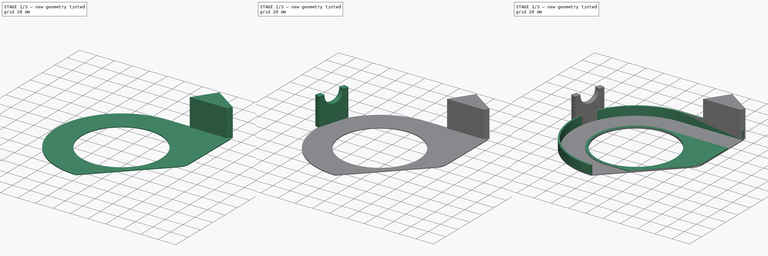
[diagram: build sequence overview — one tinted view per stage of 3, left to right]
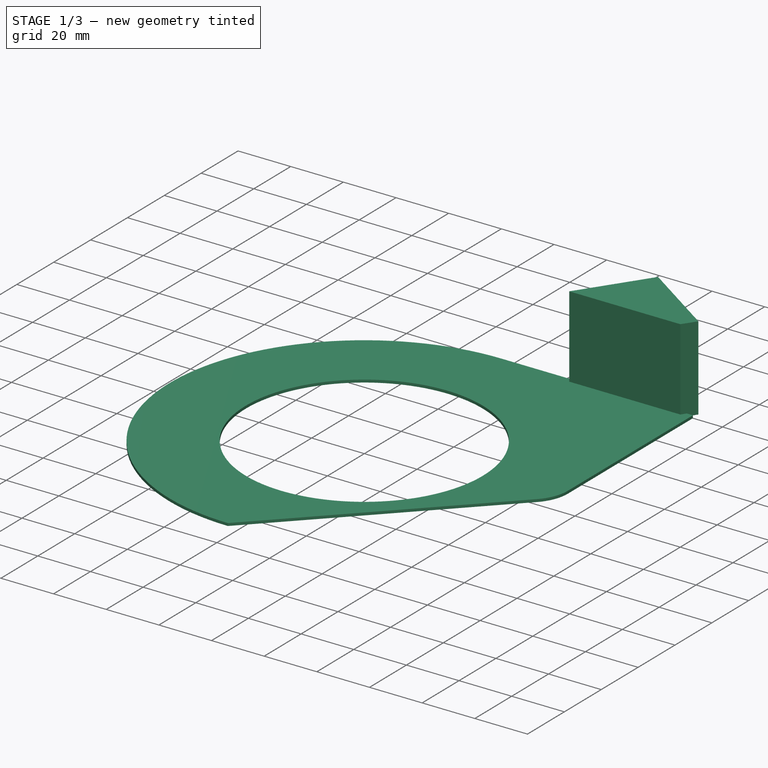
[diagram: stage 1 of 3 — iso view after this stage's code; geometry added in this stage tinted green]
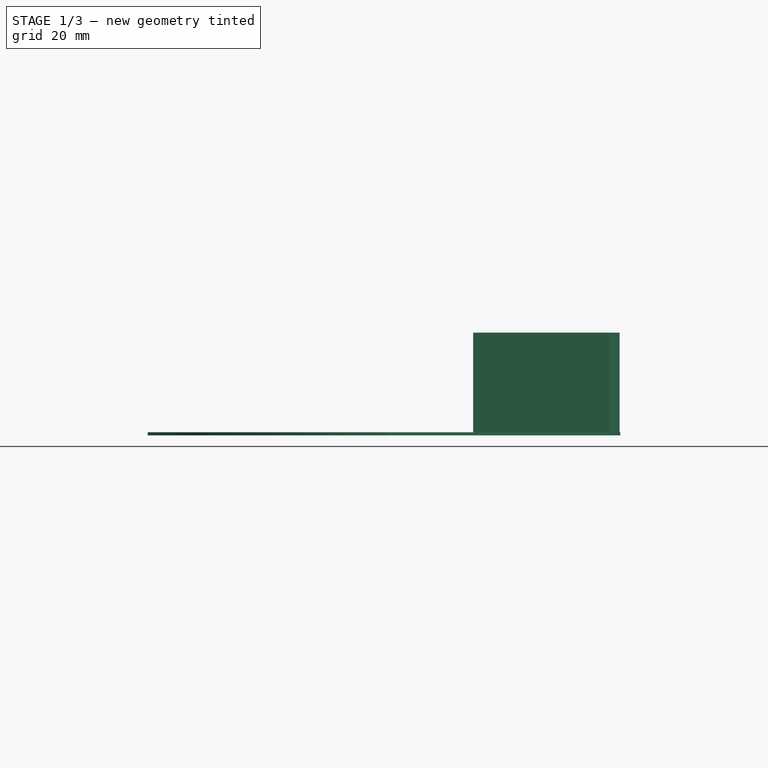
[diagram: stage 1 of 3 — front view after this stage's code; geometry added in this stage tinted green]
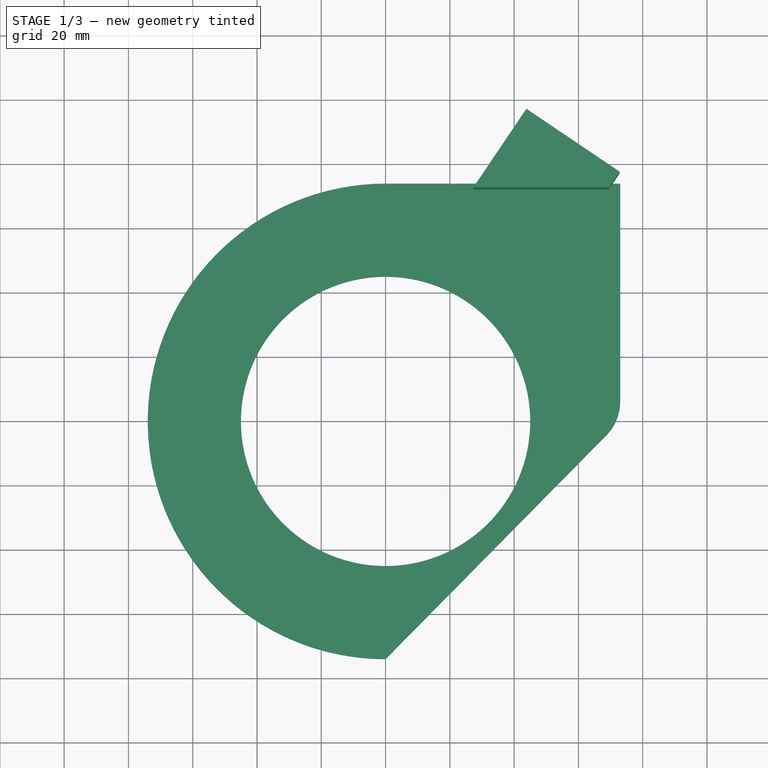
[diagram: stage 1 of 3 — top view after this stage's code; geometry added in this stage tinted green]
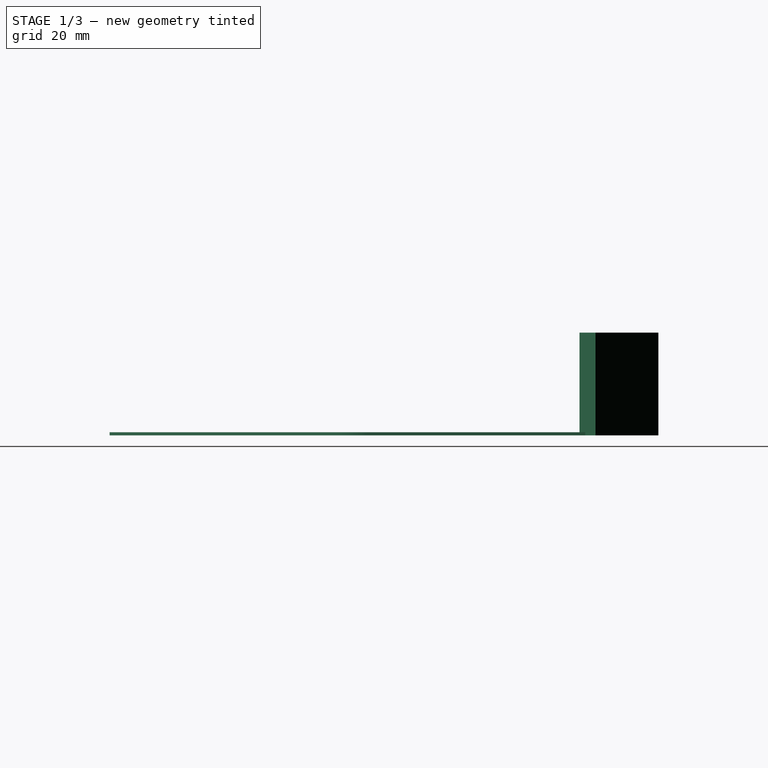
[diagram: stage 1 of 3 — right view after this stage's code; geometry added in this stage tinted green]
FCSTD DOCUMENT  (FreeCAD 0.16R)
Label: chainguard30tV4
License: All rights reserved
LicenseURL: http://en.wikipedia.org/wiki/All_rights_reserved
objects: Sketcher::SketchObject×7, PartDesign::Pad×5, PartDesign::Pocket×1
note: 19 computed .brp shape members not serialized (recipe doc carries the construction recipe); baked Part::Feature solids carry a one-line shape summary decoded from their .brp

FEATURE [Sketcher::SketchObject] Sketch001
  sketch-geometry (6):
    g0: LineSegment StartX=73 StartY=74 StartZ=0 EndX=0 EndY=74 EndZ=0
    g1: LineSegment StartX=68.6985 StartY=-4.36084 StartZ=0 EndX=0 EndY=-74 EndZ=0
    g2: ArcOfCircle CenterX=6.79667e-06 CenterY=0 CenterZ=0 NormalX=0 NormalY=0 NormalZ=1 Radius=74 StartAngle=1.5708 EndAngle=4.71239
    g3: Circle CenterX=0 CenterY=0 CenterZ=0 NormalX=0 NormalY=0 NormalZ=1 Radius=45
    g4: LineSegment StartX=73 StartY=74 StartZ=0 EndX=73 EndY=6.12459 EndZ=0
    g5: ArcOfCircle CenterX=58.0695 CenterY=6.12459 CenterZ=0 NormalX=0 NormalY=0 NormalZ=1 Radius=14.9305 StartAngle=5.50459 EndAngle=6.28319
  constraints (17):
    c: Horizontal(g0)
    c: Coincident(g2,g1)
    c: Coincident(g0,g2)
    c: DistanceX(g1,g0) = 0
    c: DistanceY(g1,g0) = 148
    c: Symmetric(g1,g0,g-1)
    c: Radius(g3) = 45
    c: Coincident(g3,g-1)
    c: DistanceX(g0,g0) = 73
    c: Vertical(g4)
    c: DistanceX(g-1,g4) = 73
    c: Radius(g2) = 74
    c: Coincident(g0,g4)
    c: Tangent(g4,g5) = 1.5708
    c: Tangent(g1,g5) = 1.5708
    c: Radius(g5) = 14.9305
    c: DistanceX(g-1,g1) = 68.6985
FEATURE [PartDesign::Pad] Pad  label="Faceplate"
  Length = 1
  Length2 = 100
  Reversed = true
  Sketch = -> Sketch001
  Type = 0
FEATURE [PartDesign::Pad] Pad005
  Length = 31
  Length2 = 1
  Sketch = -> Sketch
  Type = 4
FEATURE [Sketcher::SketchObject] Sketch028
  ExternalGeometry = -> [Pad005]
  Placement = pos=(58.5572,86.8145,0) rot=(0.211303,0.691141,0.691141;2.72511rad)
  Support = -> Pad005 [Face15]
  sketch-geometry (1):
    g0: Circle CenterX=0.289348 CenterY=31 CenterZ=0 NormalX=0 NormalY=0 NormalZ=1 Radius=11.2
  constraints (2):
    c: Symmetric(g-3,g-3,g0)
    c: Radius(g0) = 11.2
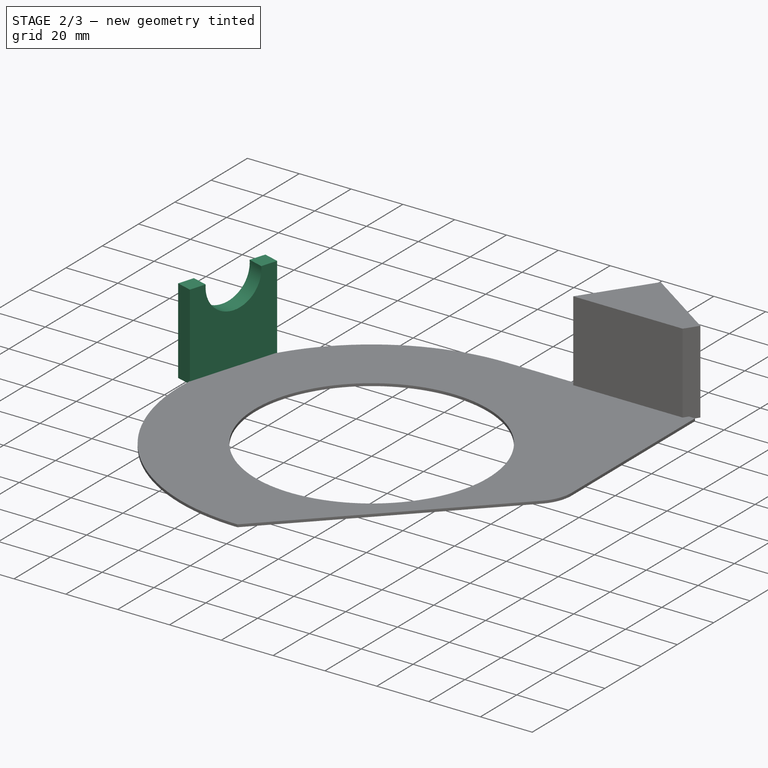
[diagram: stage 2 of 3 — iso view after this stage's code; geometry added in this stage tinted green]
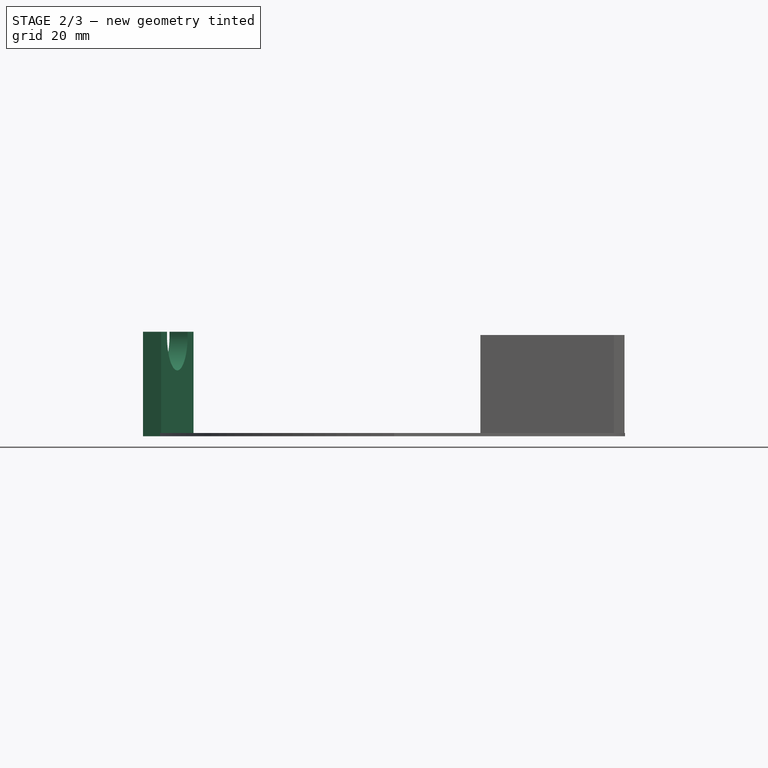
[diagram: stage 2 of 3 — front view after this stage's code; geometry added in this stage tinted green]
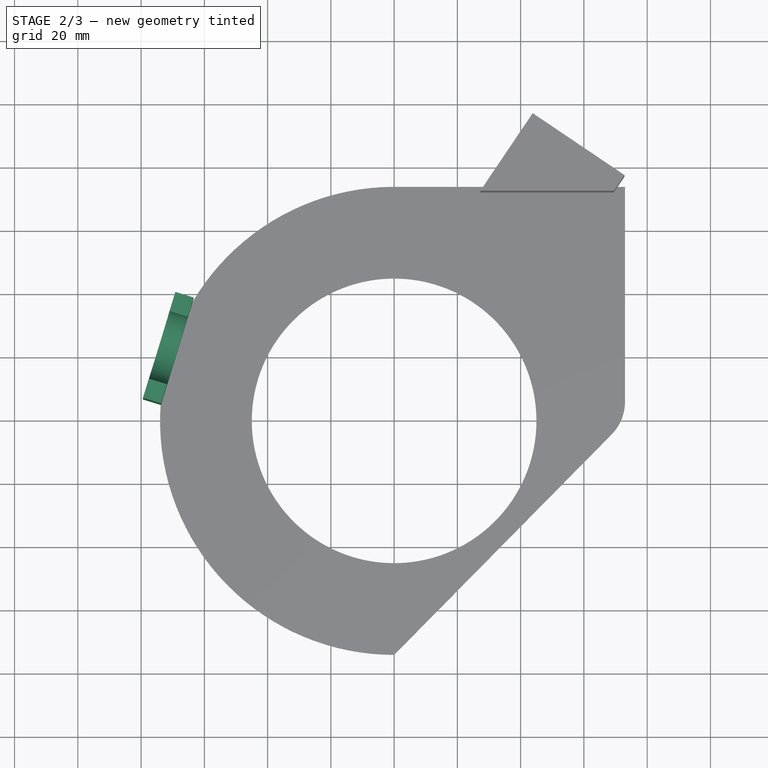
[diagram: stage 2 of 3 — top view after this stage's code; geometry added in this stage tinted green]
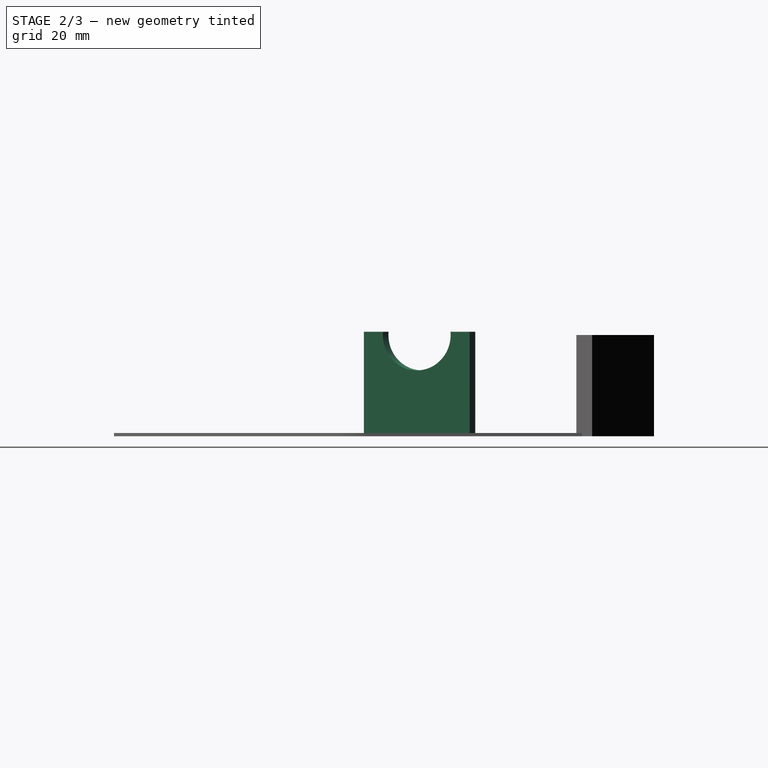
[diagram: stage 2 of 3 — right view after this stage's code; geometry added in this stage tinted green]
FEATURE [Sketcher::SketchObject] Sketch
  Support = -> Pad [Face7]
  sketch-geometry (5):
    g0: LineSegment [constr] StartX=1 StartY=2 StartZ=0 EndX=58.3173 EndY=86.9764 EndZ=0
    g1: LineSegment StartX=27.2526 StartY=72.2162 StartZ=0 EndX=69.4703 EndY=72.2162 EndZ=0
    g2: LineSegment StartX=69.4703 StartY=72.2162 StartZ=0 EndX=72.8254 EndY=77.1905 EndZ=0
    g3: LineSegment StartX=72.8254 StartY=77.1905 StartZ=0 EndX=43.8091 EndY=96.7622 EndZ=0
    g4: LineSegment StartX=43.8091 StartY=96.7622 StartZ=0 EndX=27.2526 EndY=72.2162 EndZ=0
  constraints (15):
    c: DistanceY(g-1,g0) = 2
    c: DistanceX(g0,g-1) = -1
    c: Angle(g0) = 0.977384
    c: Distance(g0) = 102.5
    c: Horizontal(g1)
    c: Coincident(g1,g2)
    c: Coincident(g2,g3)
    c: Coincident(g3,g4)
    c: Coincident(g1,g4)
    c: Parallel(g2,g0)
    c: Parallel(g0,g4)
    c: Distance(g2) = 6
    c: Symmetric(g3,g2,g0)
    c: Distance(g3) = 35
    c: PointOnObject(g0,g3)
FEATURE [Sketcher::SketchObject] Sketch025
  sketch-geometry (5):
    g0: LineSegment [constr] StartX=-4 StartY=2 StartZ=0 EndX=-74.2884 EndY=23.4893 EndZ=0
    g1: LineSegment StartX=-69.1719 StartY=40.2247 StartZ=0 EndX=-79.4049 EndY=6.75399 EndZ=0
    g2: LineSegment StartX=-79.4049 StartY=6.75399 StartZ=0 EndX=-73.6671 EndY=4.99976 EndZ=0
    g3: LineSegment StartX=-73.6671 StartY=4.99976 StartZ=0 EndX=-63.4341 EndY=38.4704 EndZ=0
    g4: LineSegment StartX=-63.4341 StartY=38.4704 StartZ=0 EndX=-69.1719 EndY=40.2247 EndZ=0
  constraints (16):
    c: DistanceY(g-1,g0) = 2
    c: DistanceX(g0,g-1) = 4
    c: Angle(g0) = 2.84489
    c: Coincident(g1,g2)
    c: Coincident(g2,g3)
    c: Coincident(g3,g4)
    c: Coincident(g4,g1)
    c: Distance(g4) = 6
    c: Parallel(g2,g0)
    c: Parallel(g0,g4)
    c: Equal(g4,g2)
    c: Perpendicular(g0,g1)
    c: PointOnObject(g0,g1)
    c: Symmetric(g1,g1,g0)
    c: Distance(g0) = 73.5
    c: Distance(g1) = 35
FEATURE [PartDesign::Pad] Pad004  label="SyncBoss"
  Length = 32
  Length2 = 1
  Sketch = -> Sketch025
  Type = 4
FEATURE [Sketcher::SketchObject] Sketch027
  Placement = pos=(-74.5057,22.7787,0) rot=(-0.463605,0.626526,0.626526;4.00981rad)
  Support = -> Pad004 [Face23]
  sketch-geometry (1):
    g0: Circle CenterX=-0.743123 CenterY=31 CenterZ=0 NormalX=0 NormalY=0 NormalZ=1 Radius=11.2
FEATURE [PartDesign::Pocket] Pocket001
  Length = 5
  Sketch = -> Sketch027
  Type = 1
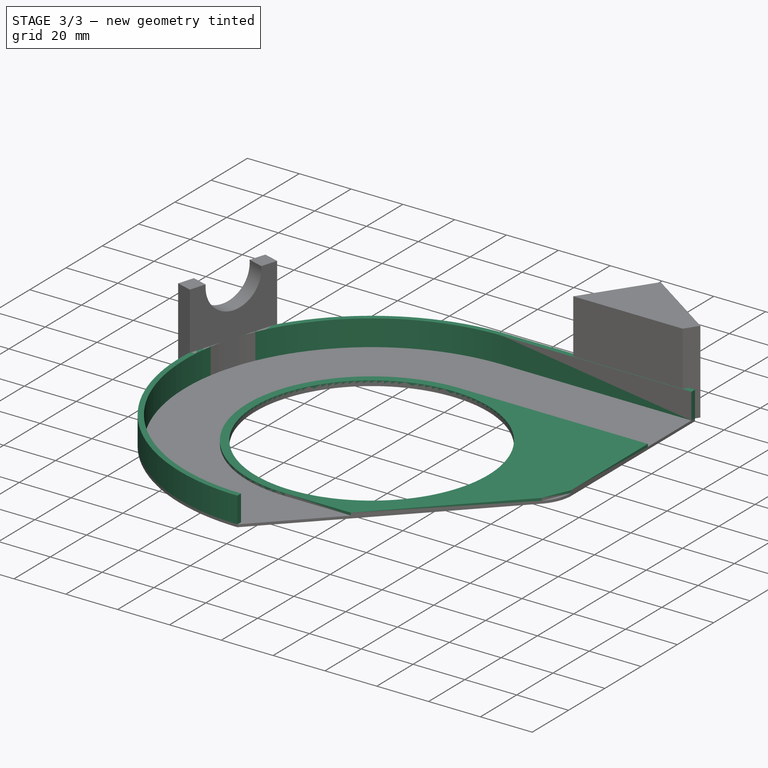
[diagram: stage 3 of 3 — iso view after this stage's code; geometry added in this stage tinted green]
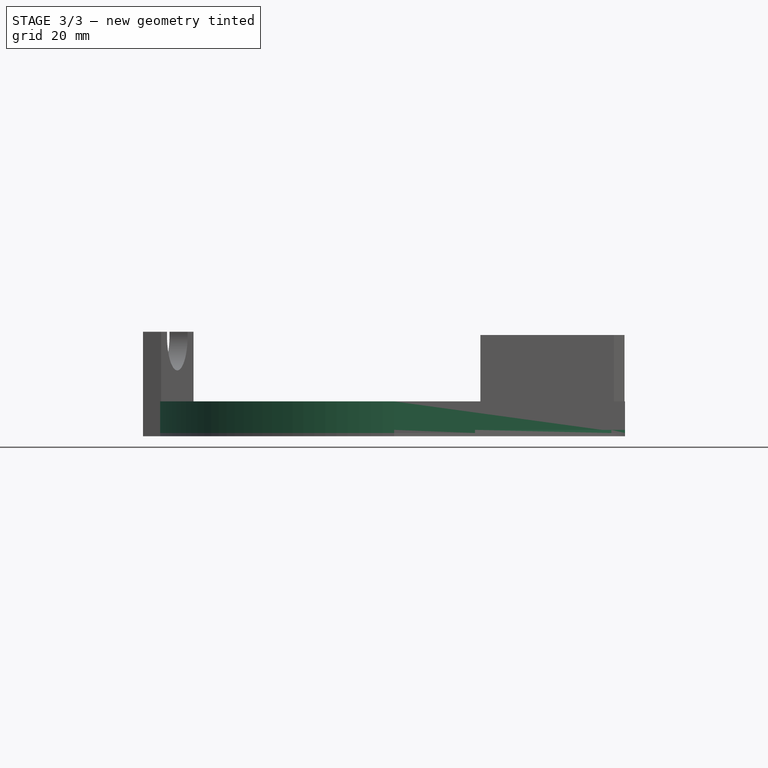
[diagram: stage 3 of 3 — front view after this stage's code; geometry added in this stage tinted green]
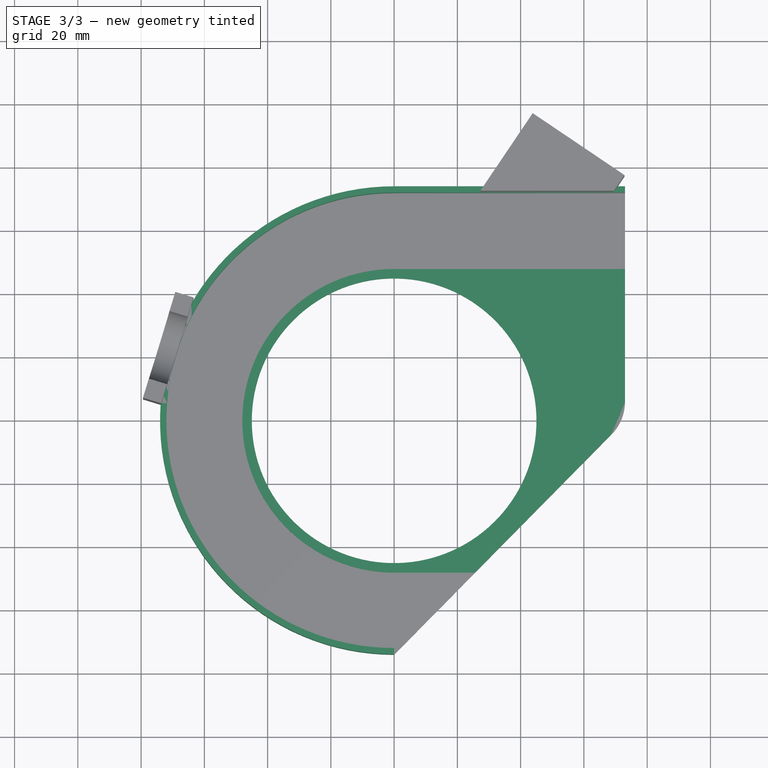
[diagram: stage 3 of 3 — top view after this stage's code; geometry added in this stage tinted green]
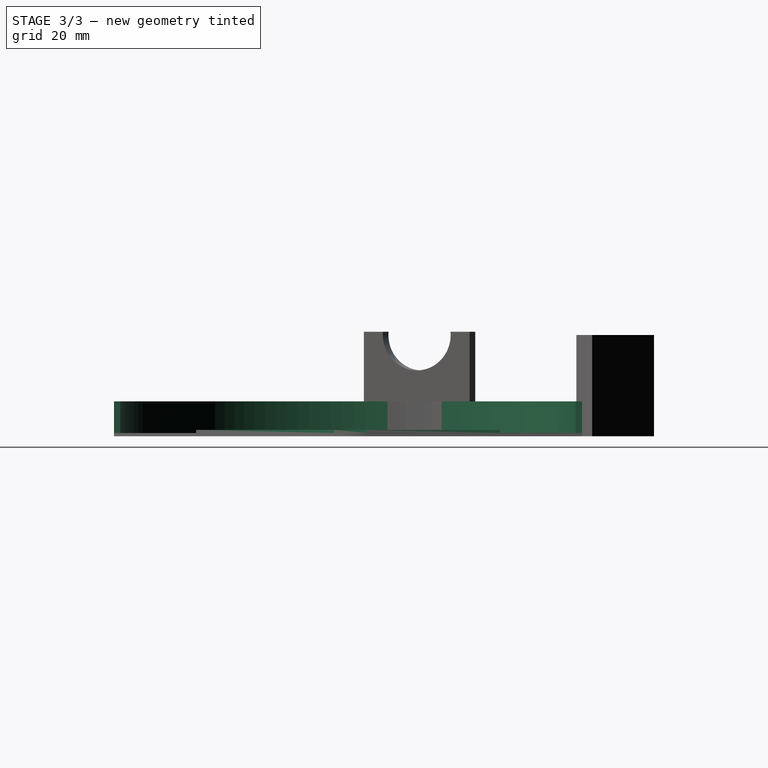
[diagram: stage 3 of 3 — right view after this stage's code; geometry added in this stage tinted green]
FEATURE [Sketcher::SketchObject] Sketch002
  sketch-geometry (6):
    g0: LineSegment StartX=73 StartY=74 StartZ=0 EndX=0 EndY=74 EndZ=0
    g1: ArcOfCircle CenterX=-4.91177e-05 CenterY=0 CenterZ=0 NormalX=0 NormalY=0 NormalZ=1 Radius=74 StartAngle=1.5708 EndAngle=4.71239
    g2: LineSegment StartX=0 StartY=72 StartZ=0 EndX=73 EndY=72 EndZ=0
    g3: LineSegment StartX=73 StartY=74 StartZ=0 EndX=73 EndY=72 EndZ=0
    g4: ArcOfCircle CenterX=-3.33407e-07 CenterY=0 CenterZ=0 NormalX=0 NormalY=0 NormalZ=1 Radius=72 StartAngle=1.5708 EndAngle=4.71239
    g5: LineSegment StartX=0 StartY=-74 StartZ=0 EndX=0 EndY=-72 EndZ=0
  constraints (19):
    c: Horizontal(g0)
    c: Coincident(g0,g1)
    c: DistanceX(g1,g0) = 0
    c: DistanceY(g1,g0) = 148
    c: Symmetric(g1,g0,g-1)
    c: Parallel(g0,g2)
    c: DistanceY(g2,g0) = 2
    c: DistanceX(g0,g2) = 0
    c: DistanceX(g4) = 0
    c: DistanceX(g0) = 73
    c: Equal(g2,g0)
    c: Coincident(g3,g2)
    c: Coincident(g3,g0)
    c: Coincident(g4,g2)
    c: Radius(g4) = 72
    c: Radius(g1) = 74
    c: Coincident(g5,g4)
    c: Coincident(g5,g1)
    c: DistanceY(g4) = -72
FEATURE [PartDesign::Pad] Pad001  label="Connector"
  Length = 10
  Length2 = 100
  Sketch = -> Sketch002
  Type = 0
FEATURE [Sketcher::SketchObject] Sketch024  label="FaceStiffener"
  sketch-geometry (7):
    g0: ArcOfCircle CenterX=0 CenterY=-4.3e-11 CenterZ=0 NormalX=0 NormalY=0 NormalZ=1 Radius=48 StartAngle=1.5708 EndAngle=4.71239
    g1: Circle CenterX=0 CenterY=0 CenterZ=0 NormalX=0 NormalY=0 NormalZ=1 Radius=45
    g2: LineSegment StartX=1.2e-11 StartY=48 StartZ=0 EndX=73 EndY=48 EndZ=0
    g3: LineSegment StartX=73 StartY=5.8371 StartZ=0 EndX=68.6668 EndY=-4.35554 EndZ=0
    g4: LineSegment StartX=25.5602 StartY=-48 StartZ=0 EndX=0.00014131 EndY=-48 EndZ=0
    g5: LineSegment StartX=73 StartY=48 StartZ=0 EndX=73 EndY=5.8371 EndZ=0
    g6: LineSegment StartX=25.5602 StartY=-48 StartZ=0 EndX=68.6668 EndY=-4.35554 EndZ=0
  constraints (20):
    c: Coincident(g0,g-1)
    c: Radius(g0) = 48
    c: Coincident(g1,g-1)
    c: Radius(g1) = 45
    c: Coincident(g0,g2)
    c: DistanceX(g-1,g2) = 73
    c: Coincident(g4,g0)
    c: Coincident(g5,g2)
    c: Coincident(g5,g3)
    c: Vertical(g5)
    c: Horizontal(g2)
    c: Horizontal(g4)
    c: Coincident(g6,g4)
    c: Coincident(g6,g3)
    c: DistanceX(g4,g4) = 25.5601
    c: Distance(g6) = 61.3434
    c: Distance(g3) = 11.0755
    c: Distance(g5) = 42.1629
    c: DistanceY(g4) = -48
    c: DistanceY(g3) = -4.35554
FEATURE [PartDesign::Pad] Pad002  label="FaceStiffener001"
  Length = 1
  Length2 = 100
  Sketch = -> Sketch024
  Type = 0
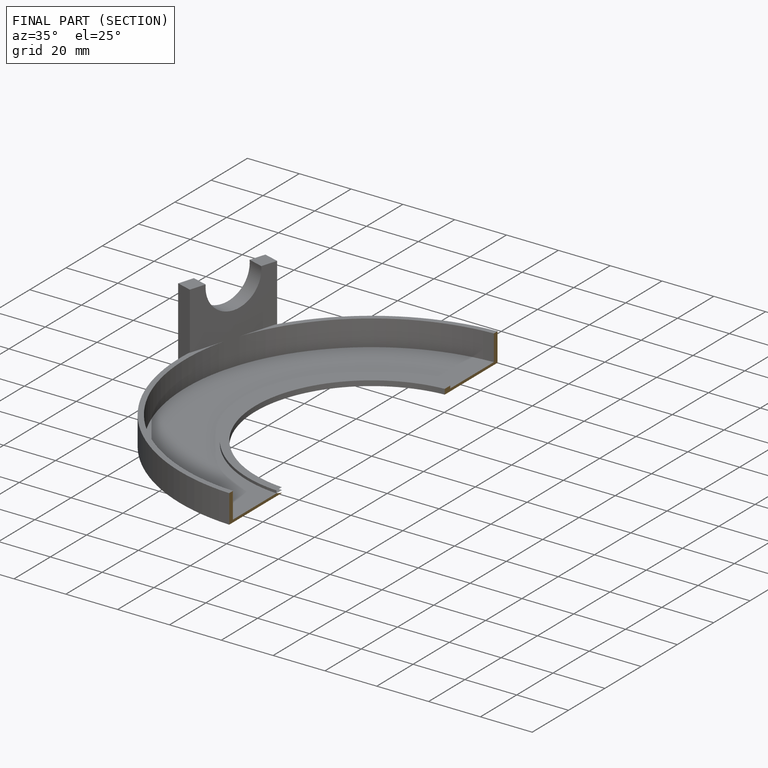
[diagram: finished part — half-section view (interior)]
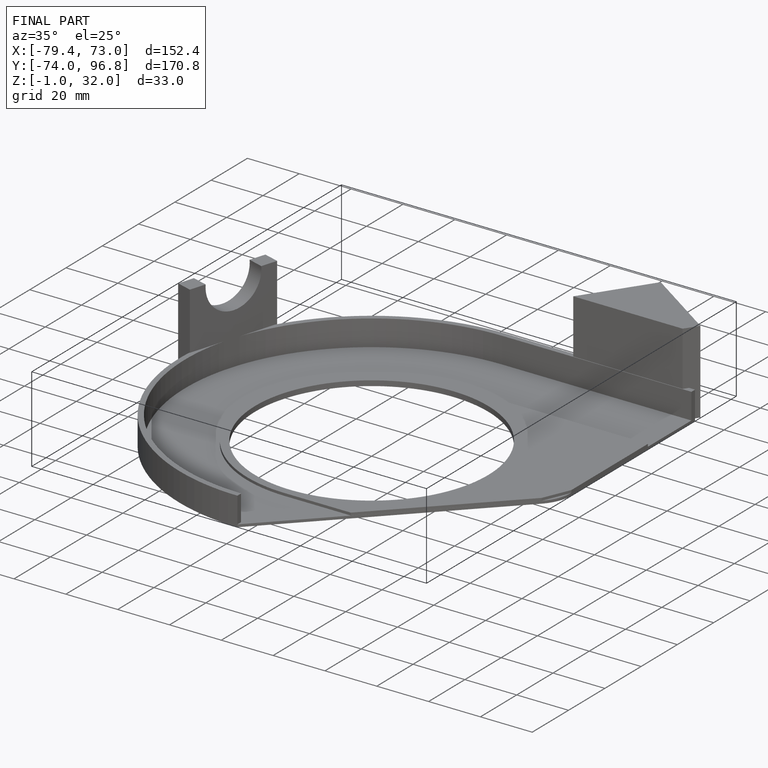
[diagram: finished part — iso view with bounding-box wireframe]
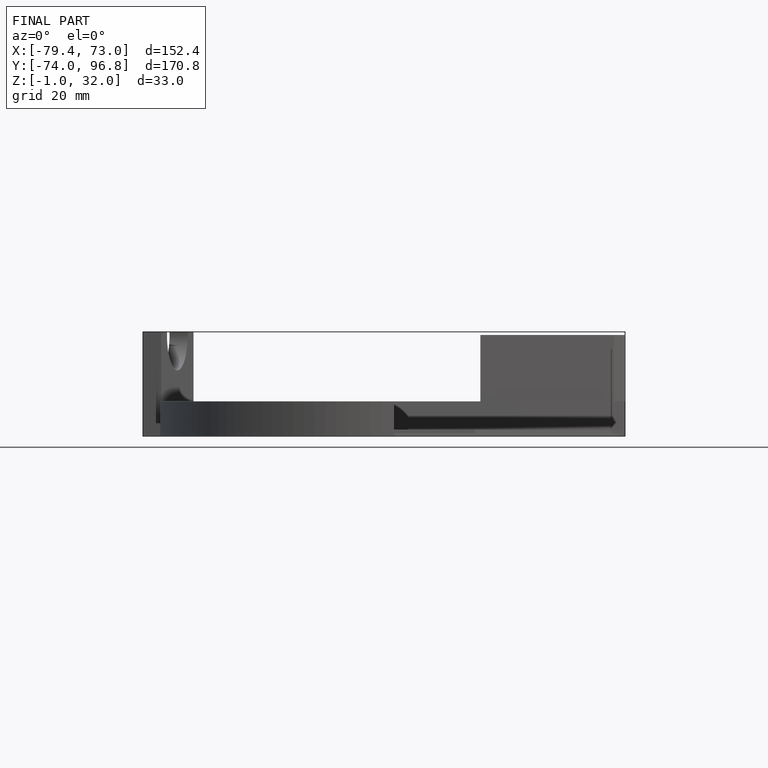
[diagram: finished part — front view with bounding-box wireframe]
